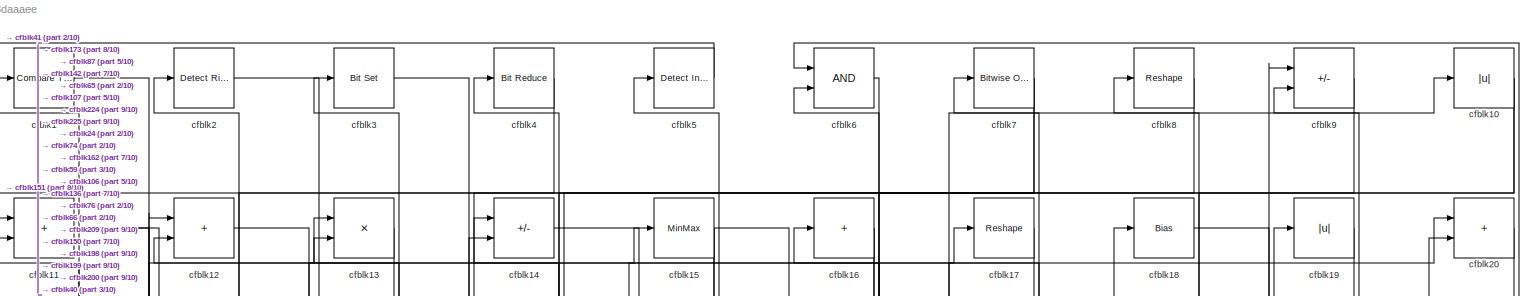
[diagram: root canvas - part 1/10, full width, top band]
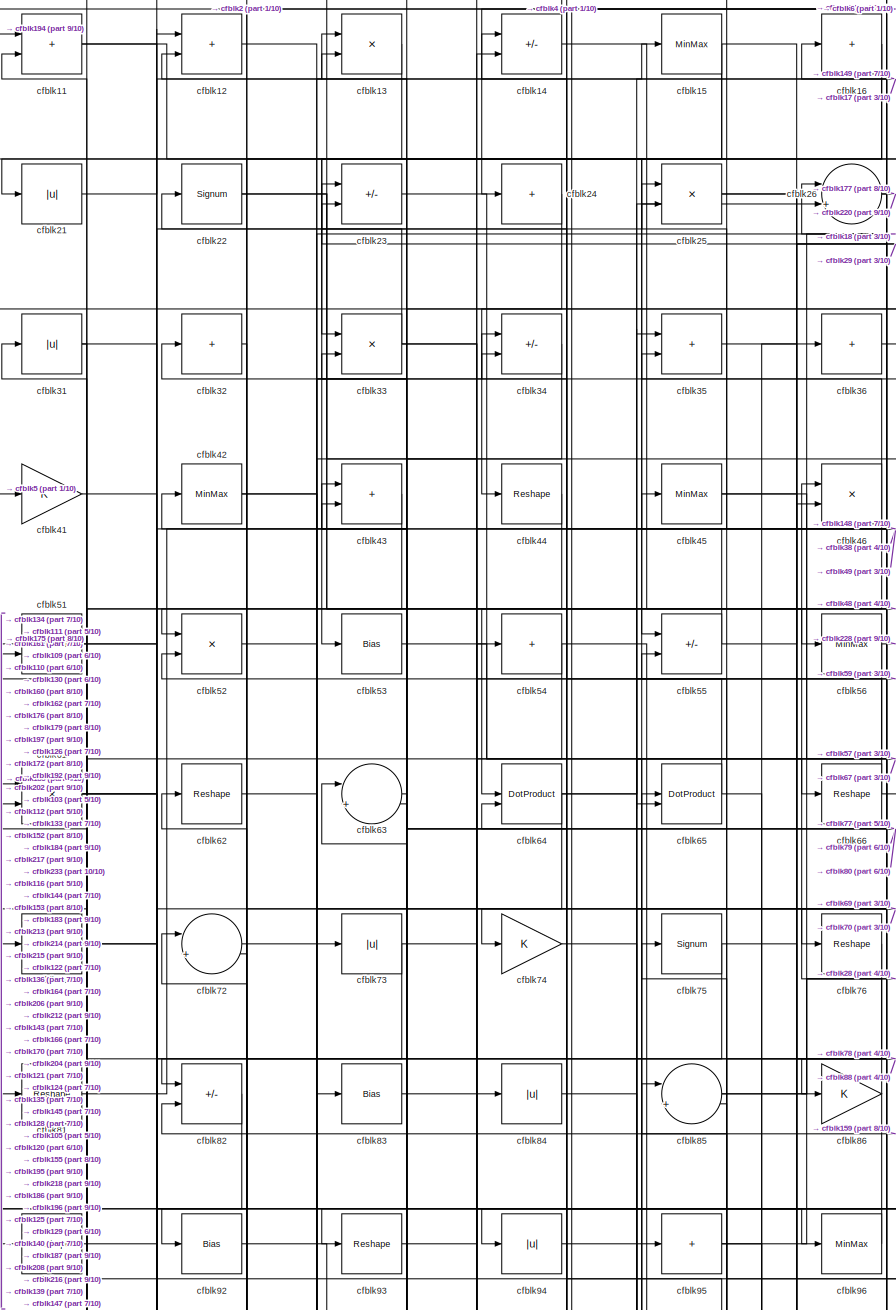
[diagram: root canvas - part 2/10, top left region]
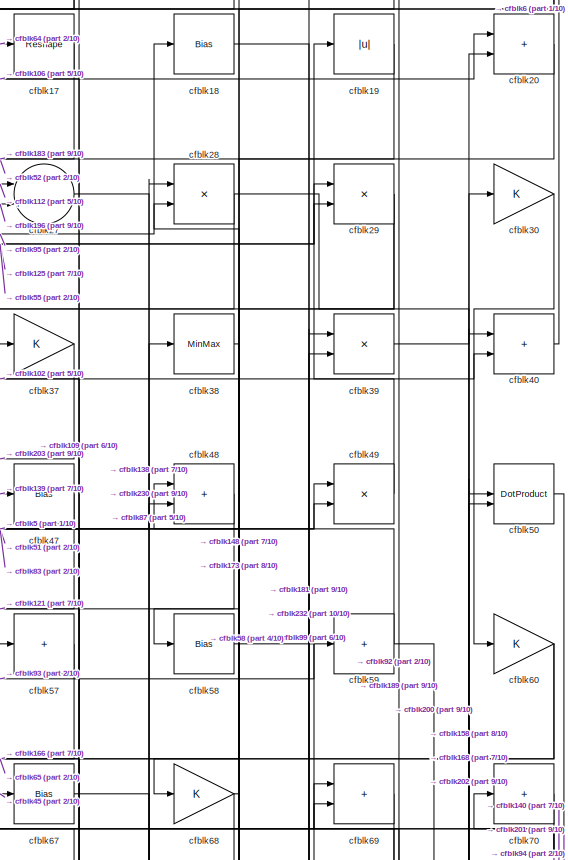
[diagram: root canvas - part 3/10, top right region]
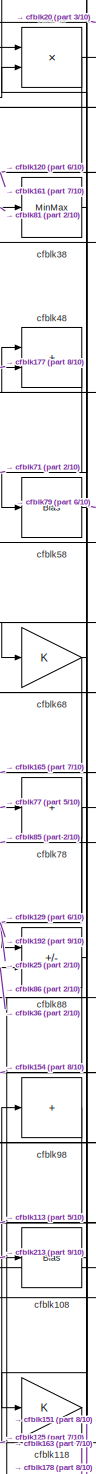
[diagram: root canvas - part 4/10, top right region]
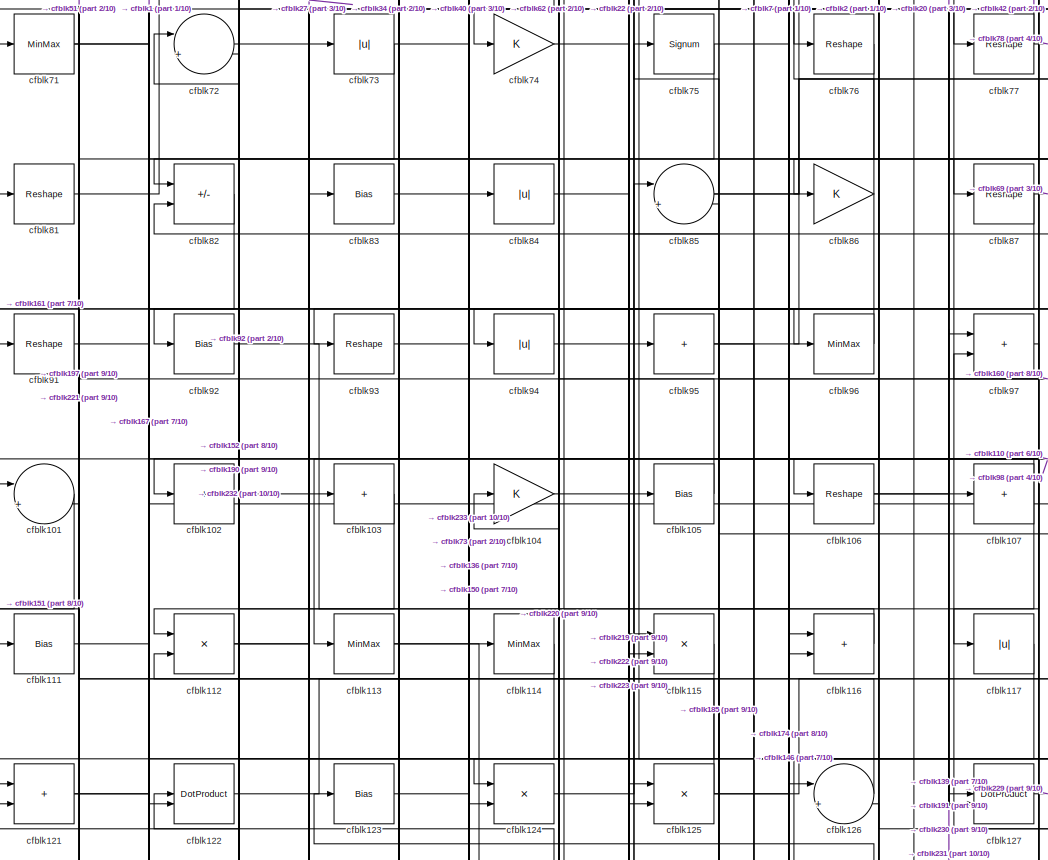
[diagram: root canvas - part 5/10, central region]
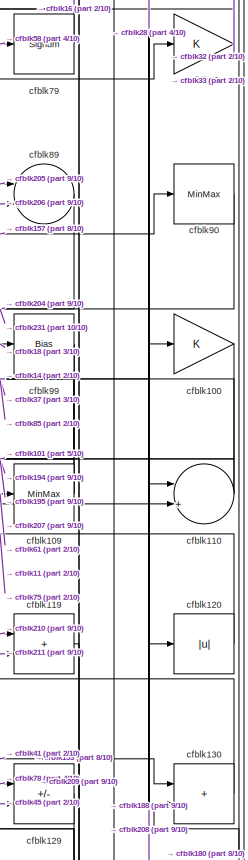
[diagram: root canvas - part 6/10, middle right region]
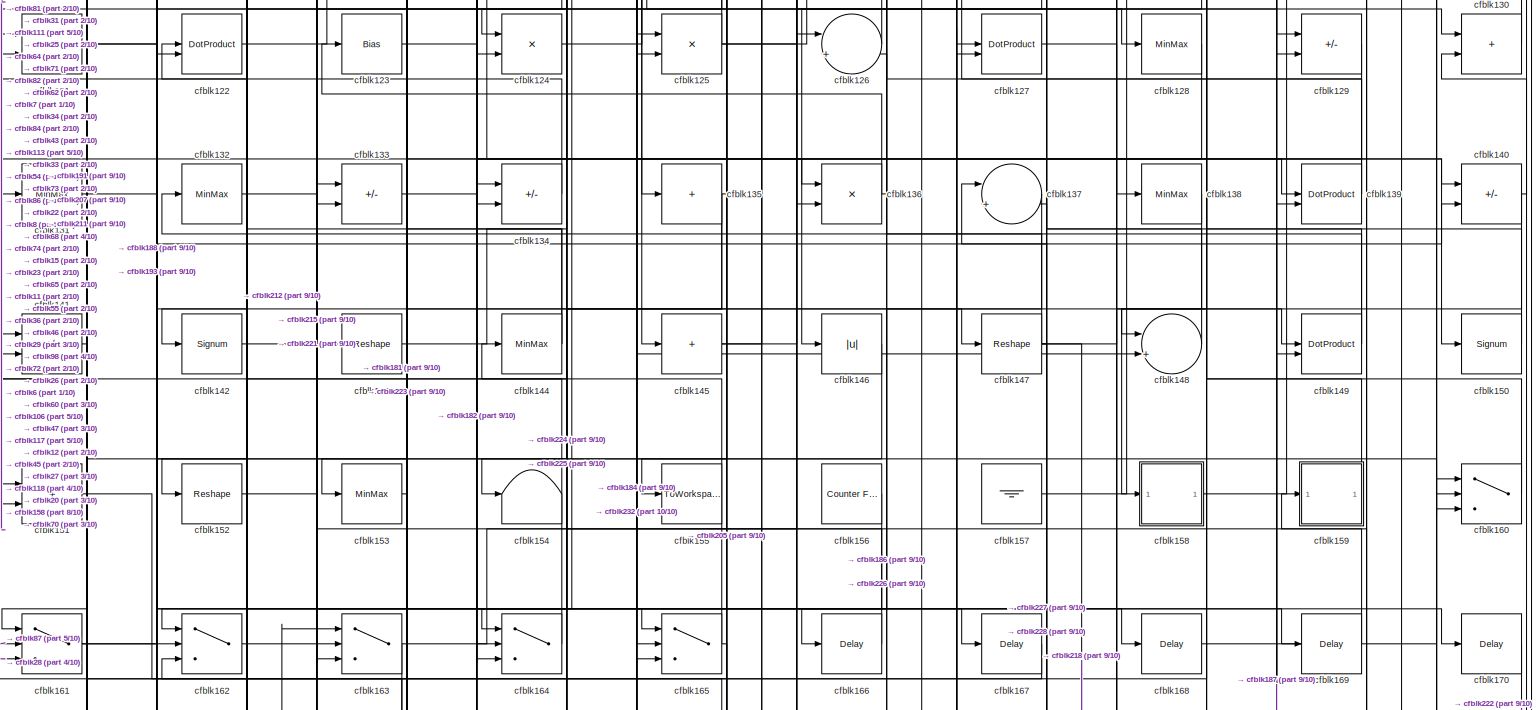
[diagram: root canvas - part 7/10, full width, middle band]
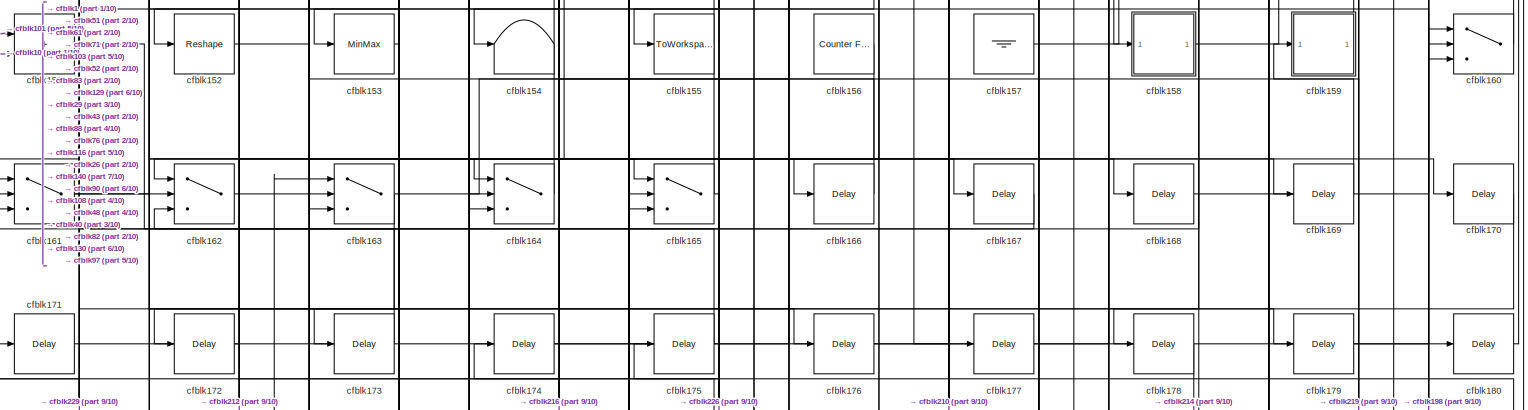
[diagram: root canvas - part 8/10, full width, bottom band]
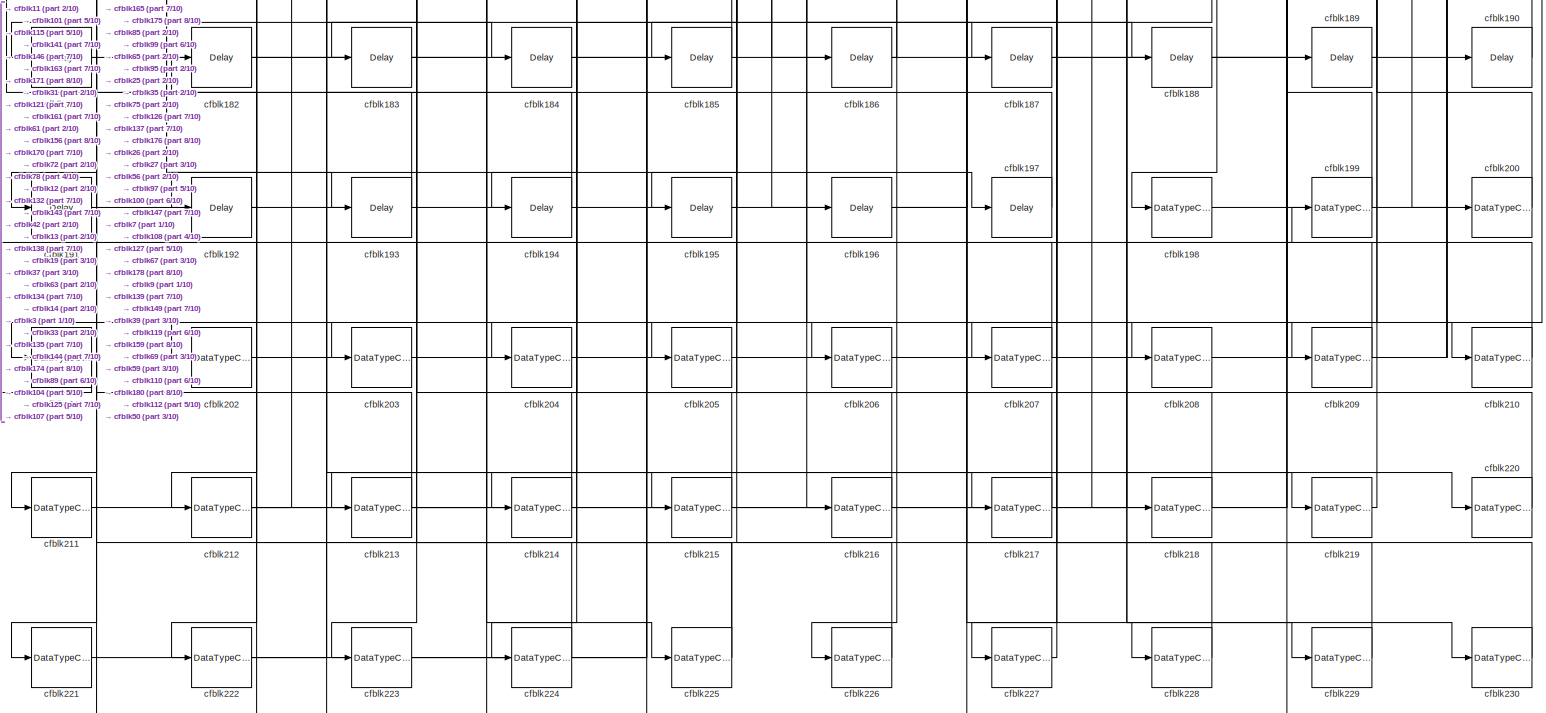
[diagram: root canvas - part 9/10, full width, bottom band]
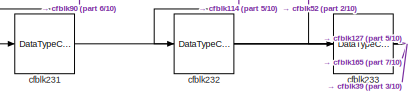
[diagram: root canvas - part 10/10, bottom left region]
MODEL slx_7892e3daaaee
KIND model
CONFIG AbsTol = auto
CONFIG EnableMultiTasking = off
CONFIG FixedStep = auto
CONFIG MaxStep = auto
CONFIG MinStep = auto
CONFIG RelTol = 1e-3
CONFIG SampleTimeConstraint = Unconstrained
CONFIG SolverName = VariableStepAuto
CONFIG StartTime = 0.0
CONFIG StopTime = 10.0
BLOCK [Reference] cfblk1  REF=hdlsllib/Logic and Bit
Operations/Compare
To Zero
  SourceBlock = hdlsllib/Logic and Bit\nOperations/Compare\nTo Zero
  SourceType = Compare To Zero
BLOCK [Abs] cfblk10
  SaturateOnIntegerOverflow = off
BLOCK [Gain] cfblk100
BLOCK [Sum] cfblk101
  Inputs = |++
BLOCK [Sum] cfblk102
  IconShape = rectangular
  Inputs = +
BLOCK [Sum] cfblk103
  IconShape = rectangular
  Inputs = +
BLOCK [Gain] cfblk104
BLOCK [Bias] cfblk105
  Bias = 0.0
  SaturateOnIntegerOverflow = off
BLOCK [Reshape] cfblk106
BLOCK [Sum] cfblk107
  IconShape = rectangular
  Inputs = +
BLOCK [Bias] cfblk108
  Bias = 0.0
  SaturateOnIntegerOverflow = off
BLOCK [MinMax] cfblk109
BLOCK [Sum] cfblk11
  IconShape = rectangular
BLOCK [Sum] cfblk110
  Inputs = |++
BLOCK [Bias] cfblk111
  Bias = 0.0
  SaturateOnIntegerOverflow = off
BLOCK [Product] cfblk112
  Inputs = */
  RndMeth = Zero
  SaturateOnIntegerOverflow = on
BLOCK [MinMax] cfblk113
BLOCK [MinMax] cfblk114
BLOCK [Product] cfblk115
  Inputs = */
  RndMeth = Zero
  SaturateOnIntegerOverflow = on
BLOCK [Sum] cfblk116
  IconShape = rectangular
BLOCK [Abs] cfblk117
  SaturateOnIntegerOverflow = off
BLOCK [Gain] cfblk118
BLOCK [Sum] cfblk119
  IconShape = rectangular
BLOCK [Sum] cfblk12
  IconShape = rectangular
BLOCK [Abs] cfblk120
  SaturateOnIntegerOverflow = off
BLOCK [Sum] cfblk121
  IconShape = rectangular
BLOCK [DotProduct] cfblk122
  OutDataTypeStr = Inherit: Inherit via internal rule
BLOCK [Bias] cfblk123
  Bias = 0.0
  SaturateOnIntegerOverflow = off
BLOCK [Product] cfblk124
  Inputs = */
  RndMeth = Zero
  SaturateOnIntegerOverflow = on
BLOCK [Product] cfblk125
  Inputs = */
  RndMeth = Zero
  SaturateOnIntegerOverflow = on
BLOCK [Sum] cfblk126
  Inputs = |++
BLOCK [DotProduct] cfblk127
  OutDataTypeStr = Inherit: Inherit via internal rule
BLOCK [MinMax] cfblk128
BLOCK [Sum] cfblk129
  IconShape = rectangular
  Inputs = +-
BLOCK [Product] cfblk13
  Inputs = */
  RndMeth = Zero
  SaturateOnIntegerOverflow = on
BLOCK [Sum] cfblk130
  IconShape = rectangular
BLOCK [MinMax] cfblk131
BLOCK [MinMax] cfblk132
BLOCK [Sum] cfblk133
  IconShape = rectangular
  Inputs = +-
BLOCK [Sum] cfblk134
  IconShape = rectangular
  Inputs = +-
BLOCK [Sum] cfblk135
  IconShape = rectangular
  Inputs = +
BLOCK [Product] cfblk136
  Inputs = */
  RndMeth = Zero
  SaturateOnIntegerOverflow = on
BLOCK [Sum] cfblk137
  Inputs = |++
BLOCK [MinMax] cfblk138
BLOCK [DotProduct] cfblk139
  OutDataTypeStr = Inherit: Inherit via internal rule
BLOCK [Sum] cfblk14
  IconShape = rectangular
  Inputs = +-
BLOCK [Sum] cfblk140
  IconShape = rectangular
  Inputs = +-
BLOCK [Sum] cfblk141
  IconShape = rectangular
  Inputs = +-
BLOCK [Signum] cfblk142
BLOCK [Reshape] cfblk143
BLOCK [MinMax] cfblk144
BLOCK [Sum] cfblk145
  IconShape = rectangular
  Inputs = +
BLOCK [Abs] cfblk146
  SaturateOnIntegerOverflow = off
BLOCK [Reshape] cfblk147
BLOCK [Sum] cfblk148
  Inputs = |++
BLOCK [DotProduct] cfblk149
  OutDataTypeStr = Inherit: Inherit via internal rule
BLOCK [MinMax] cfblk15
BLOCK [Signum] cfblk150
BLOCK [Sum] cfblk151
  IconShape = rectangular
BLOCK [Reshape] cfblk152
BLOCK [MinMax] cfblk153
BLOCK [Terminator] cfblk154
BLOCK [ToWorkspace] cfblk155
  MaxDataPoints = inf
  SampleTime = -1
  SaveFormat = Timeseries
  VariableName = simout
BLOCK [Reference] cfblk156  REF=hdlsllib/Sources/Counter
Free-Running
  SourceBlock = hdlsllib/Sources/Counter\nFree-Running
  SourceType = Counter Free-Running
BLOCK [Ground] cfblk157
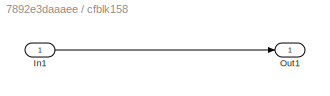
BLOCK [SubSystem] cfblk158
  LibrarySourceBlock = hdlsllib/Ports &\nSubsystems/Subsystem
BLOCK [Inport] cfblk158/In1
BLOCK [Outport] cfblk158/Out1
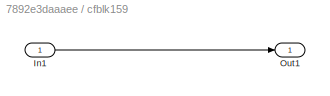
BLOCK [SubSystem] cfblk159
  LibrarySourceBlock = hdlsllib/Ports &\nSubsystems/Subsystem
BLOCK [Inport] cfblk159/In1
BLOCK [Outport] cfblk159/Out1
BLOCK [Sum] cfblk16
  IconShape = rectangular
  Inputs = +
BLOCK [Switch] cfblk160
  InputSameDT = off
  SaturateOnIntegerOverflow = off
BLOCK [Switch] cfblk161
  InputSameDT = off
  SaturateOnIntegerOverflow = off
BLOCK [Switch] cfblk162
  InputSameDT = off
  SaturateOnIntegerOverflow = off
BLOCK [Switch] cfblk163
  InputSameDT = off
  SaturateOnIntegerOverflow = off
BLOCK [Switch] cfblk164
  InputSameDT = off
  SaturateOnIntegerOverflow = off
BLOCK [Switch] cfblk165
  InputSameDT = off
  SaturateOnIntegerOverflow = off
BLOCK [Delay] cfblk166
  InputPortMap = u0
  SampleTime = 1
BLOCK [Delay] cfblk167
  InputPortMap = u0
  SampleTime = 1
BLOCK [Delay] cfblk168
  InputPortMap = u0
  SampleTime = 1
BLOCK [Delay] cfblk169
  InputPortMap = u0
  SampleTime = 1
BLOCK [Reshape] cfblk17
BLOCK [Delay] cfblk170
  InputPortMap = u0
  SampleTime = 1
BLOCK [Delay] cfblk171
  InputPortMap = u0
  SampleTime = 1
BLOCK [Delay] cfblk172
  InputPortMap = u0
  SampleTime = 1
BLOCK [Delay] cfblk173
  InputPortMap = u0
  SampleTime = 1
BLOCK [Delay] cfblk174
  InputPortMap = u0
  SampleTime = 1
BLOCK [Delay] cfblk175
  InputPortMap = u0
  SampleTime = 1
BLOCK [Delay] cfblk176
  InputPortMap = u0
  SampleTime = 1
BLOCK [Delay] cfblk177
  InputPortMap = u0
  SampleTime = 1
BLOCK [Delay] cfblk178
  InputPortMap = u0
  SampleTime = 1
BLOCK [Delay] cfblk179
  InputPortMap = u0
  SampleTime = 1
BLOCK [Bias] cfblk18
  Bias = 0.0
  SaturateOnIntegerOverflow = off
BLOCK [Delay] cfblk180
  InputPortMap = u0
  SampleTime = 1
BLOCK [Delay] cfblk181
  InputPortMap = u0
  SampleTime = 1
BLOCK [Delay] cfblk182
  InputPortMap = u0
  SampleTime = 1
BLOCK [Delay] cfblk183
  InputPortMap = u0
  SampleTime = 1
BLOCK [Delay] cfblk184
  InputPortMap = u0
  SampleTime = 1
BLOCK [Delay] cfblk185
  InputPortMap = u0
  SampleTime = 1
BLOCK [Delay] cfblk186
  InputPortMap = u0
  SampleTime = 1
BLOCK [Delay] cfblk187
  InputPortMap = u0
  SampleTime = 1
BLOCK [Delay] cfblk188
  InputPortMap = u0
  SampleTime = 1
BLOCK [Delay] cfblk189
  InputPortMap = u0
  SampleTime = 1
BLOCK [Abs] cfblk19
  SaturateOnIntegerOverflow = off
BLOCK [Delay] cfblk190
  InputPortMap = u0
  SampleTime = 1
BLOCK [Delay] cfblk191
  InputPortMap = u0
  SampleTime = 1
BLOCK [Delay] cfblk192
  InputPortMap = u0
  SampleTime = 1
BLOCK [Delay] cfblk193
  InputPortMap = u0
  SampleTime = 1
BLOCK [Delay] cfblk194
  InputPortMap = u0
  SampleTime = 1
BLOCK [Delay] cfblk195
  InputPortMap = u0
  SampleTime = 1
BLOCK [Delay] cfblk196
  InputPortMap = u0
  SampleTime = 1
BLOCK [Delay] cfblk197
  InputPortMap = u0
  SampleTime = 1
BLOCK [DataTypeConversion] cfblk198
  OutDataTypeStr = uint8
  RndMeth = Floor
  SaturateOnIntegerOverflow = off
BLOCK [DataTypeConversion] cfblk199
  OutDataTypeStr = uint8
  RndMeth = Floor
  SaturateOnIntegerOverflow = off
BLOCK [Reference] cfblk2  REF=hdlsllib/Logic and Bit
Operations/Detect Rise
Nonnegative
  SourceBlock = hdlsllib/Logic and Bit\nOperations/Detect Rise\nNonnegative
  SourceType = Detect Rise Nonnegative
BLOCK [Sum] cfblk20
  IconShape = rectangular
BLOCK [DataTypeConversion] cfblk200
  OutDataTypeStr = uint8
  RndMeth = Floor
  SaturateOnIntegerOverflow = off
BLOCK [DataTypeConversion] cfblk201
  OutDataTypeStr = uint8
  RndMeth = Floor
  SaturateOnIntegerOverflow = off
BLOCK [DataTypeConversion] cfblk202
  OutDataTypeStr = uint8
  RndMeth = Floor
  SaturateOnIntegerOverflow = off
BLOCK [DataTypeConversion] cfblk203
  OutDataTypeStr = uint8
  RndMeth = Floor
  SaturateOnIntegerOverflow = off
BLOCK [DataTypeConversion] cfblk204
  OutDataTypeStr = uint8
  RndMeth = Floor
  SaturateOnIntegerOverflow = off
BLOCK [DataTypeConversion] cfblk205
  OutDataTypeStr = uint8
  RndMeth = Floor
  SaturateOnIntegerOverflow = off
BLOCK [DataTypeConversion] cfblk206
  OutDataTypeStr = uint8
  RndMeth = Floor
  SaturateOnIntegerOverflow = off
BLOCK [DataTypeConversion] cfblk207
  RndMeth = Floor
  SaturateOnIntegerOverflow = off
BLOCK [DataTypeConversion] cfblk208
  OutDataTypeStr = uint8
  RndMeth = Floor
  SaturateOnIntegerOverflow = off
BLOCK [DataTypeConversion] cfblk209
  OutDataTypeStr = uint8
  RndMeth = Floor
  SaturateOnIntegerOverflow = off
BLOCK [Abs] cfblk21
  SaturateOnIntegerOverflow = off
BLOCK [DataTypeConversion] cfblk210
  OutDataTypeStr = uint8
  RndMeth = Floor
  SaturateOnIntegerOverflow = off
BLOCK [DataTypeConversion] cfblk211
  OutDataTypeStr = uint8
  RndMeth = Floor
  SaturateOnIntegerOverflow = off
BLOCK [DataTypeConversion] cfblk212
  RndMeth = Floor
  SaturateOnIntegerOverflow = off
BLOCK [DataTypeConversion] cfblk213
  RndMeth = Floor
  SaturateOnIntegerOverflow = off
BLOCK [DataTypeConversion] cfblk214
  OutDataTypeStr = uint8
  RndMeth = Floor
  SaturateOnIntegerOverflow = off
BLOCK [DataTypeConversion] cfblk215
  OutDataTypeStr = uint8
  RndMeth = Floor
  SaturateOnIntegerOverflow = off
BLOCK [DataTypeConversion] cfblk216
  OutDataTypeStr = uint8
  RndMeth = Floor
  SaturateOnIntegerOverflow = off
BLOCK [DataTypeConversion] cfblk217
  OutDataTypeStr = uint8
  RndMeth = Floor
  SaturateOnIntegerOverflow = off
BLOCK [DataTypeConversion] cfblk218
  OutDataTypeStr = uint8
  RndMeth = Floor
  SaturateOnIntegerOverflow = off
BLOCK [DataTypeConversion] cfblk219
  OutDataTypeStr = uint8
  RndMeth = Floor
  SaturateOnIntegerOverflow = off
BLOCK [Signum] cfblk22
BLOCK [DataTypeConversion] cfblk220
  OutDataTypeStr = uint8
  RndMeth = Floor
  SaturateOnIntegerOverflow = off
BLOCK [DataTypeConversion] cfblk221
  OutDataTypeStr = uint8
  RndMeth = Floor
  SaturateOnIntegerOverflow = off
BLOCK [DataTypeConversion] cfblk222
  OutDataTypeStr = uint8
  RndMeth = Floor
  SaturateOnIntegerOverflow = off
BLOCK [DataTypeConversion] cfblk223
  OutDataTypeStr = uint8
  RndMeth = Floor
  SaturateOnIntegerOverflow = off
BLOCK [DataTypeConversion] cfblk224
  OutDataTypeStr = boolean
  RndMeth = Floor
  SaturateOnIntegerOverflow = off
BLOCK [DataTypeConversion] cfblk225
  RndMeth = Floor
  SaturateOnIntegerOverflow = off
BLOCK [DataTypeConversion] cfblk226
  OutDataTypeStr = uint8
  RndMeth = Floor
  SaturateOnIntegerOverflow = off
BLOCK [DataTypeConversion] cfblk227
  OutDataTypeStr = uint8
  RndMeth = Floor
  SaturateOnIntegerOverflow = off
BLOCK [DataTypeConversion] cfblk228
  OutDataTypeStr = uint8
  RndMeth = Floor
  SaturateOnIntegerOverflow = off
BLOCK [DataTypeConversion] cfblk229
  OutDataTypeStr = uint8
  RndMeth = Floor
  SaturateOnIntegerOverflow = off
BLOCK [Sum] cfblk23
  IconShape = rectangular
  Inputs = +-
BLOCK [DataTypeConversion] cfblk230
  OutDataTypeStr = uint8
  RndMeth = Floor
  SaturateOnIntegerOverflow = off
BLOCK [DataTypeConversion] cfblk231
  OutDataTypeStr = uint8
  RndMeth = Floor
  SaturateOnIntegerOverflow = off
BLOCK [DataTypeConversion] cfblk232
  RndMeth = Floor
  SaturateOnIntegerOverflow = off
BLOCK [DataTypeConversion] cfblk233
  OutDataTypeStr = uint8
  RndMeth = Floor
  SaturateOnIntegerOverflow = off
BLOCK [Sum] cfblk24
  IconShape = rectangular
  Inputs = +
BLOCK [Product] cfblk25
  Inputs = */
  RndMeth = Zero
  SaturateOnIntegerOverflow = on
BLOCK [Sum] cfblk26
  Inputs = |++
BLOCK [Sum] cfblk27
  Inputs = |++
BLOCK [Product] cfblk28
  Inputs = */
  RndMeth = Zero
  SaturateOnIntegerOverflow = on
BLOCK [Product] cfblk29
  Inputs = */
  RndMeth = Zero
  SaturateOnIntegerOverflow = on
BLOCK [Reference] cfblk3  REF=simulink/Logic and Bit
Operations/Bit Set
  LibrarySourceBlock = hdlsllib/Logic and Bit\nOperations/Bit Set
  SourceBlock = simulink/Logic and Bit\nOperations/Bit Set
  SourceType = Bit Set
BLOCK [Gain] cfblk30
BLOCK [Abs] cfblk31
  SaturateOnIntegerOverflow = off
BLOCK [Sum] cfblk32
  IconShape = rectangular
  Inputs = +
BLOCK [Product] cfblk33
  Inputs = */
  RndMeth = Zero
  SaturateOnIntegerOverflow = on
BLOCK [Sum] cfblk34
  IconShape = rectangular
  Inputs = +-
BLOCK [Sum] cfblk35
  IconShape = rectangular
BLOCK [Sum] cfblk36
  IconShape = rectangular
  Inputs = +
BLOCK [Gain] cfblk37
BLOCK [MinMax] cfblk38
BLOCK [Product] cfblk39
  Inputs = */
  RndMeth = Zero
  SaturateOnIntegerOverflow = on
BLOCK [Reference] cfblk4  REF=hdlsllib/Logic and Bit
Operations/Bit Reduce
  SourceBlock = hdlsllib/Logic and Bit\nOperations/Bit Reduce
  SourceType = Bit Reduce
BLOCK [Sum] cfblk40
  IconShape = rectangular
BLOCK [Gain] cfblk41
BLOCK [MinMax] cfblk42
BLOCK [Sum] cfblk43
  IconShape = rectangular
BLOCK [Reshape] cfblk44
BLOCK [MinMax] cfblk45
BLOCK [Product] cfblk46
  Inputs = */
  RndMeth = Zero
  SaturateOnIntegerOverflow = on
BLOCK [Bias] cfblk47
  Bias = 0.0
  SaturateOnIntegerOverflow = off
BLOCK [Sum] cfblk48
  IconShape = rectangular
BLOCK [Product] cfblk49
  Inputs = */
  RndMeth = Zero
  SaturateOnIntegerOverflow = on
BLOCK [Reference] cfblk5  REF=simulink/Logic and Bit
Operations/Detect
Increase
  LibrarySourceBlock = hdlsllib/Logic and Bit\nOperations/Detect\nIncrease
  SourceBlock = simulink/Logic and Bit\nOperations/Detect\nIncrease
  SourceType = Detect Increase
BLOCK [DotProduct] cfblk50
  OutDataTypeStr = Inherit: Inherit via internal rule
BLOCK [DotProduct] cfblk51
  OutDataTypeStr = Inherit: Inherit via internal rule
BLOCK [Product] cfblk52
  Inputs = */
  RndMeth = Zero
  SaturateOnIntegerOverflow = on
BLOCK [Bias] cfblk53
  Bias = 0.0
  SaturateOnIntegerOverflow = off
BLOCK [Sum] cfblk54
  IconShape = rectangular
  Inputs = +
BLOCK [Sum] cfblk55
  IconShape = rectangular
  Inputs = +-
BLOCK [MinMax] cfblk56
BLOCK [Sum] cfblk57
  IconShape = rectangular
  Inputs = +
BLOCK [Bias] cfblk58
  Bias = 0.0
  SaturateOnIntegerOverflow = off
BLOCK [Sum] cfblk59
  IconShape = rectangular
  Inputs = +
BLOCK [Logic] cfblk6
  AllPortsSameDT = off
  OutDataTypeStr = boolean
BLOCK [Gain] cfblk60
BLOCK [Product] cfblk61
  Inputs = */
  RndMeth = Zero
  SaturateOnIntegerOverflow = on
BLOCK [Reshape] cfblk62
BLOCK [Sum] cfblk63
  Inputs = |++
BLOCK [DotProduct] cfblk64
  OutDataTypeStr = Inherit: Inherit via internal rule
BLOCK [DotProduct] cfblk65
  OutDataTypeStr = Inherit: Inherit via internal rule
BLOCK [Reshape] cfblk66
BLOCK [Bias] cfblk67
  Bias = 0.0
  SaturateOnIntegerOverflow = off
BLOCK [Gain] cfblk68
BLOCK [Sum] cfblk69
  IconShape = rectangular
BLOCK [Reference] cfblk7  REF=simulink/Logic and Bit
Operations/Bitwise
Operator
  LibrarySourceBlock = hdlsllib/Logic and Bit\nOperations/Bitwise\nOperator
  SourceBlock = simulink/Logic and Bit\nOperations/Bitwise\nOperator
  SourceType = Bitwise Operator
BLOCK [Sum] cfblk70
  IconShape = rectangular
  Inputs = +
BLOCK [MinMax] cfblk71
BLOCK [Sum] cfblk72
  Inputs = |++
BLOCK [Abs] cfblk73
  SaturateOnIntegerOverflow = off
BLOCK [Gain] cfblk74
BLOCK [Signum] cfblk75
BLOCK [Reshape] cfblk76
BLOCK [Reshape] cfblk77
BLOCK [Sum] cfblk78
  IconShape = rectangular
  Inputs = +
BLOCK [Signum] cfblk79
BLOCK [Reshape] cfblk8
BLOCK [Gain] cfblk80
BLOCK [Reshape] cfblk81
BLOCK [Sum] cfblk82
  IconShape = rectangular
  Inputs = +-
BLOCK [Bias] cfblk83
  Bias = 0.0
  SaturateOnIntegerOverflow = off
BLOCK [Abs] cfblk84
  SaturateOnIntegerOverflow = off
BLOCK [Sum] cfblk85
  Inputs = |++
BLOCK [Gain] cfblk86
BLOCK [Reshape] cfblk87
BLOCK [Sum] cfblk88
  IconShape = rectangular
  Inputs = +-
BLOCK [Sum] cfblk89
  Inputs = |++
BLOCK [Sum] cfblk9
  IconShape = rectangular
  Inputs = +-
BLOCK [MinMax] cfblk90
BLOCK [Reshape] cfblk91
BLOCK [Bias] cfblk92
  Bias = 0.0
  SaturateOnIntegerOverflow = off
BLOCK [Reshape] cfblk93
BLOCK [Abs] cfblk94
  SaturateOnIntegerOverflow = off
BLOCK [Sum] cfblk95
  IconShape = rectangular
  Inputs = +
BLOCK [MinMax] cfblk96
BLOCK [Sum] cfblk97
  IconShape = rectangular
BLOCK [Sum] cfblk98
  IconShape = rectangular
  Inputs = +
BLOCK [Bias] cfblk99
  Bias = 0.0
  SaturateOnIntegerOverflow = off
LINE cfblk100:1 -> cfblk207:1
LINE cfblk101:1 -> cfblk151:1
LINE cfblk102:1 -> cfblk40:2
LINE cfblk103:1 -> cfblk152:1
LINE cfblk104:1 -> cfblk219:1
LINE cfblk105:1 -> cfblk51:2
NET cfblk106:1 -> cfblk139:1, cfblk20:1
NET cfblk107:1 -> cfblk102:1, cfblk185:1
LINE cfblk108:1 -> cfblk178:1
NET cfblk109:1 -> cfblk37:1, cfblk85:1
NET cfblk10:1 -> cfblk151:2, cfblk74:1
NET cfblk110:1 -> cfblk101:1, cfblk14:1
LINE cfblk111:1 -> cfblk167:1
NET cfblk112:1 -> cfblk27:1, cfblk34:2
NET cfblk113:1 -> cfblk136:1, cfblk150:1
LINE cfblk114:1 -> cfblk232:1
LINE cfblk115:1 -> cfblk221:1
LINE cfblk116:1 -> cfblk112:1
LINE cfblk117:1 -> cfblk146:1
LINE cfblk118:1 -> cfblk163:3
LINE cfblk119:1 -> cfblk209:1
NET cfblk11:1 -> cfblk110:2, cfblk55:1
LINE cfblk120:1 -> cfblk75:1
NET cfblk121:1 -> cfblk193:1, cfblk25:1
LINE cfblk122:1 -> cfblk84:1
LINE cfblk123:1 -> cfblk168:1
LINE cfblk124:1 -> cfblk65:1
NET cfblk125:1 -> cfblk11:2, cfblk29:1, cfblk98:1
LINE cfblk126:1 -> cfblk72:1
LINE cfblk127:1 -> cfblk229:1
LINE cfblk128:1 -> cfblk131:1
LINE cfblk129:1 -> cfblk153:1
LINE cfblk12:1 -> cfblk217:1
LINE cfblk130:1 -> cfblk61:2
LINE cfblk131:1 -> cfblk169:1
LINE cfblk132:1 -> cfblk215:1
LINE cfblk133:1 -> cfblk54:1
LINE cfblk134:1 -> cfblk81:1
NET cfblk135:1 -> cfblk164:1, cfblk224:1, cfblk55:2
NET cfblk136:1 -> cfblk123:1, cfblk6:2
LINE cfblk137:1 -> cfblk226:1
LINE cfblk138:1 -> cfblk223:1
NET cfblk139:1 -> cfblk23:2, cfblk47:1
LINE cfblk13:1 -> cfblk53:1
NET cfblk140:1 -> cfblk158:1, cfblk70:1
LINE cfblk141:1 -> cfblk191:1
LINE cfblk142:1 -> cfblk165:1
LINE cfblk143:1 -> cfblk22:1
NET cfblk144:1 -> cfblk43:2, cfblk62:1
NET cfblk145:1 -> cfblk36:1, cfblk46:2
LINE cfblk146:1 -> cfblk211:1
NET cfblk147:1 -> cfblk149:1, cfblk218:1, cfblk227:1, cfblk26:1
LINE cfblk148:1 -> cfblk45:1
NET cfblk149:1 -> cfblk12:2, cfblk132:1
LINE cfblk14:1 -> cfblk56:1
LINE cfblk150:1 -> cfblk8:1
LINE cfblk151:1 -> cfblk48:1
LINE cfblk152:1 -> cfblk83:1
LINE cfblk153:1 -> cfblk43:1
LINE cfblk156:1 -> cfblk212:1
LINE cfblk157:1 -> cfblk90:1
LINE cfblk158/In1:1 -> cfblk158/Out1:1
LINE cfblk158:1 -> cfblk40:1
LINE cfblk159/In1:1 -> cfblk159/Out1:1
LINE cfblk159:1 -> cfblk82:2
NET cfblk15:1 -> cfblk121:2, cfblk135:1, cfblk140:1
LINE cfblk160:1 -> cfblk97:2
NET cfblk161:1 -> cfblk140:2, cfblk188:1
LINE cfblk162:1 -> cfblk73:1
NET cfblk163:1 -> cfblk126:1, cfblk181:1
LINE cfblk164:1 -> cfblk122:1
NET cfblk165:1 -> cfblk141:1, cfblk205:1
LINE cfblk166:1 -> cfblk64:2
LINE cfblk167:1 -> cfblk162:3
LINE cfblk168:1 -> cfblk20:2
LINE cfblk169:1 -> cfblk133:1
NET cfblk16:1 -> cfblk21:1, cfblk33:1
LINE cfblk170:1 -> cfblk222:1
LINE cfblk171:1 -> cfblk160:1
LINE cfblk172:1 -> cfblk52:2
LINE cfblk173:1 -> cfblk1:1
LINE cfblk174:1 -> cfblk116:1
LINE cfblk175:1 -> cfblk51:1
LINE cfblk176:1 -> cfblk210:1
LINE cfblk177:1 -> cfblk48:2
LINE cfblk178:1 -> cfblk214:1
LINE cfblk179:1 -> cfblk160:2
LINE cfblk17:1 -> cfblk52:1
LINE cfblk180:1 -> cfblk130:2
LINE cfblk181:1 -> cfblk39:2
LINE cfblk182:1 -> cfblk134:1
LINE cfblk183:1 -> cfblk13:2
LINE cfblk184:1 -> cfblk125:1
LINE cfblk185:1 -> cfblk61:1
LINE cfblk186:1 -> cfblk126:2
LINE cfblk187:1 -> cfblk149:2
LINE cfblk188:1 -> cfblk110:1
LINE cfblk189:1 -> cfblk69:2
LINE cfblk18:1 -> cfblk99:1
LINE cfblk190:1 -> cfblk112:2
LINE cfblk191:1 -> cfblk97:1
LINE cfblk192:1 -> cfblk72:2
LINE cfblk193:1 -> cfblk163:2
LINE cfblk194:1 -> cfblk11:1
LINE cfblk195:1 -> cfblk85:2
LINE cfblk196:1 -> cfblk27:2
LINE cfblk197:1 -> cfblk101:2
LINE cfblk198:1 -> cfblk180:1
LINE cfblk199:1 -> cfblk9:1
LINE cfblk19:1 -> cfblk183:1
LINE cfblk1:1 -> cfblk87:1
LINE cfblk200:1 -> cfblk9:2
LINE cfblk201:1 -> cfblk199:1
LINE cfblk202:1 -> cfblk50:1
LINE cfblk203:1 -> cfblk50:2
LINE cfblk204:1 -> cfblk95:1
LINE cfblk205:1 -> cfblk89:1
LINE cfblk206:1 -> cfblk89:2
NET cfblk207:1 -> cfblk141:2, cfblk189:1, cfblk190:1
LINE cfblk208:1 -> cfblk100:1
LINE cfblk209:1 -> cfblk7:1
LINE cfblk20:1 -> cfblk58:1
LINE cfblk210:1 -> cfblk119:1
LINE cfblk211:1 -> cfblk119:2
NET cfblk212:1 -> cfblk139:2, cfblk14:2, cfblk163:1
NET cfblk213:1 -> cfblk108:1, cfblk31:1
LINE cfblk214:1 -> cfblk63:1
LINE cfblk215:1 -> cfblk63:2
LINE cfblk216:1 -> cfblk174:1
LINE cfblk217:1 -> cfblk35:1
LINE cfblk218:1 -> cfblk35:2
LINE cfblk219:1 -> cfblk159:1
LINE cfblk21:1 -> cfblk13:1
LINE cfblk220:1 -> cfblk104:1
LINE cfblk221:1 -> cfblk143:1
LINE cfblk222:1 -> cfblk115:1
LINE cfblk223:1 -> cfblk115:2
LINE cfblk224:1 -> cfblk3:1
NET cfblk225:1 -> cfblk144:1, cfblk182:1
LINE cfblk226:1 -> cfblk175:1
LINE cfblk227:1 -> cfblk137:1
LINE cfblk228:1 -> cfblk137:2
LINE cfblk229:1 -> cfblk171:1
NET cfblk22:1 -> cfblk105:1, cfblk124:2
LINE cfblk230:1 -> cfblk127:1
LINE cfblk231:1 -> cfblk127:2
NET cfblk232:1 -> cfblk165:3, cfblk39:1
LINE cfblk233:1 -> cfblk114:1
LINE cfblk23:1 -> cfblk145:1
LINE cfblk24:1 -> cfblk44:1
NET cfblk25:1 -> cfblk208:1, cfblk88:1
NET cfblk26:1 -> cfblk177:1, cfblk220:1
LINE cfblk27:1 -> cfblk138:1
NET cfblk28:1 -> cfblk120:1, cfblk161:3
NET cfblk29:1 -> cfblk148:1, cfblk173:1
LINE cfblk2:1 -> cfblk107:1
LINE cfblk30:1 -> cfblk60:1
NET cfblk31:1 -> cfblk161:1, cfblk96:1
LINE cfblk32:1 -> cfblk82:1
NET cfblk33:1 -> cfblk134:2, cfblk206:1, cfblk23:1
LINE cfblk34:1 -> cfblk133:2
LINE cfblk35:1 -> cfblk216:1
LINE cfblk36:1 -> cfblk88:2
LINE cfblk37:1 -> cfblk203:1
LINE cfblk38:1 -> cfblk68:1
LINE cfblk39:1 -> cfblk30:1
LINE cfblk3:1 -> cfblk225:1
LINE cfblk40:1 -> cfblk6:1
LINE cfblk41:1 -> cfblk130:1
NET cfblk42:1 -> cfblk103:1, cfblk184:1
LINE cfblk43:1 -> cfblk172:1
LINE cfblk44:1 -> cfblk64:1
NET cfblk45:1 -> cfblk129:2, cfblk67:1
NET cfblk46:1 -> cfblk124:1, cfblk25:2
LINE cfblk47:1 -> cfblk121:1
LINE cfblk48:1 -> cfblk71:1
LINE cfblk49:1 -> cfblk19:1
LINE cfblk4:1 -> cfblk24:1
LINE cfblk50:1 -> cfblk201:1
NET cfblk51:1 -> cfblk160:3, cfblk49:2
LINE cfblk52:1 -> cfblk233:1
LINE cfblk53:1 -> cfblk66:1
NET cfblk54:1 -> cfblk128:1, cfblk164:3
NET cfblk55:1 -> cfblk29:2, cfblk34:1
NET cfblk56:1 -> cfblk228:1, cfblk91:1
LINE cfblk57:1 -> cfblk65:2
LINE cfblk58:1 -> cfblk79:1
NET cfblk59:1 -> cfblk200:1, cfblk5:1
LINE cfblk5:1 -> cfblk41:1
NET cfblk60:1 -> cfblk125:2, cfblk166:1
NET cfblk61:1 -> cfblk109:1, cfblk179:1, cfblk197:1
LINE cfblk62:1 -> cfblk77:1
LINE cfblk63:1 -> cfblk213:1
NET cfblk64:1 -> cfblk122:2, cfblk17:1, cfblk26:2
NET cfblk65:1 -> cfblk186:1, cfblk2:1
NET cfblk66:1 -> cfblk10:1, cfblk4:1
LINE cfblk67:1 -> cfblk230:1
NET cfblk68:1 -> cfblk118:1, cfblk165:2
LINE cfblk69:1 -> cfblk92:1
LINE cfblk6:1 -> cfblk76:1
LINE cfblk70:1 -> cfblk94:1
NET cfblk71:1 -> cfblk147:1, cfblk176:1
LINE cfblk72:1 -> cfblk15:1
NET cfblk73:1 -> cfblk111:1, cfblk136:2
LINE cfblk74:1 -> cfblk148:2
NET cfblk75:1 -> cfblk187:1, cfblk202:1
LINE cfblk76:1 -> cfblk155:1
NET cfblk77:1 -> cfblk42:1, cfblk78:1
NET cfblk78:1 -> cfblk129:1, cfblk192:1, cfblk86:1
LINE cfblk79:1 -> cfblk16:1
NET cfblk7:1 -> cfblk106:1, cfblk142:1
NET cfblk80:1 -> cfblk32:1, cfblk33:2
LINE cfblk81:1 -> cfblk38:1
LINE cfblk82:1 -> cfblk162:2
LINE cfblk83:1 -> cfblk49:1
LINE cfblk84:1 -> cfblk170:1
NET cfblk85:1 -> cfblk28:1, cfblk80:1
NET cfblk86:1 -> cfblk164:2, cfblk46:1
NET cfblk87:1 -> cfblk161:2, cfblk69:1
NET cfblk88:1 -> cfblk154:1, cfblk28:2
LINE cfblk89:1 -> cfblk204:1
LINE cfblk8:1 -> cfblk162:1
LINE cfblk90:1 -> cfblk231:1
LINE cfblk91:1 -> cfblk12:1
LINE cfblk92:1 -> cfblk116:2
LINE cfblk93:1 -> cfblk59:1
LINE cfblk94:1 -> cfblk57:1
NET cfblk95:1 -> cfblk18:1, cfblk196:1
LINE cfblk96:1 -> cfblk93:1
LINE cfblk97:1 -> cfblk117:1
LINE cfblk98:1 -> cfblk113:1
NET cfblk99:1 -> cfblk194:1, cfblk195:1
LINE cfblk9:1 -> cfblk198:1
note: NET lines group one-source signal fan-out (src -> all destinations, sorted); 1:1 wires keep LINE
